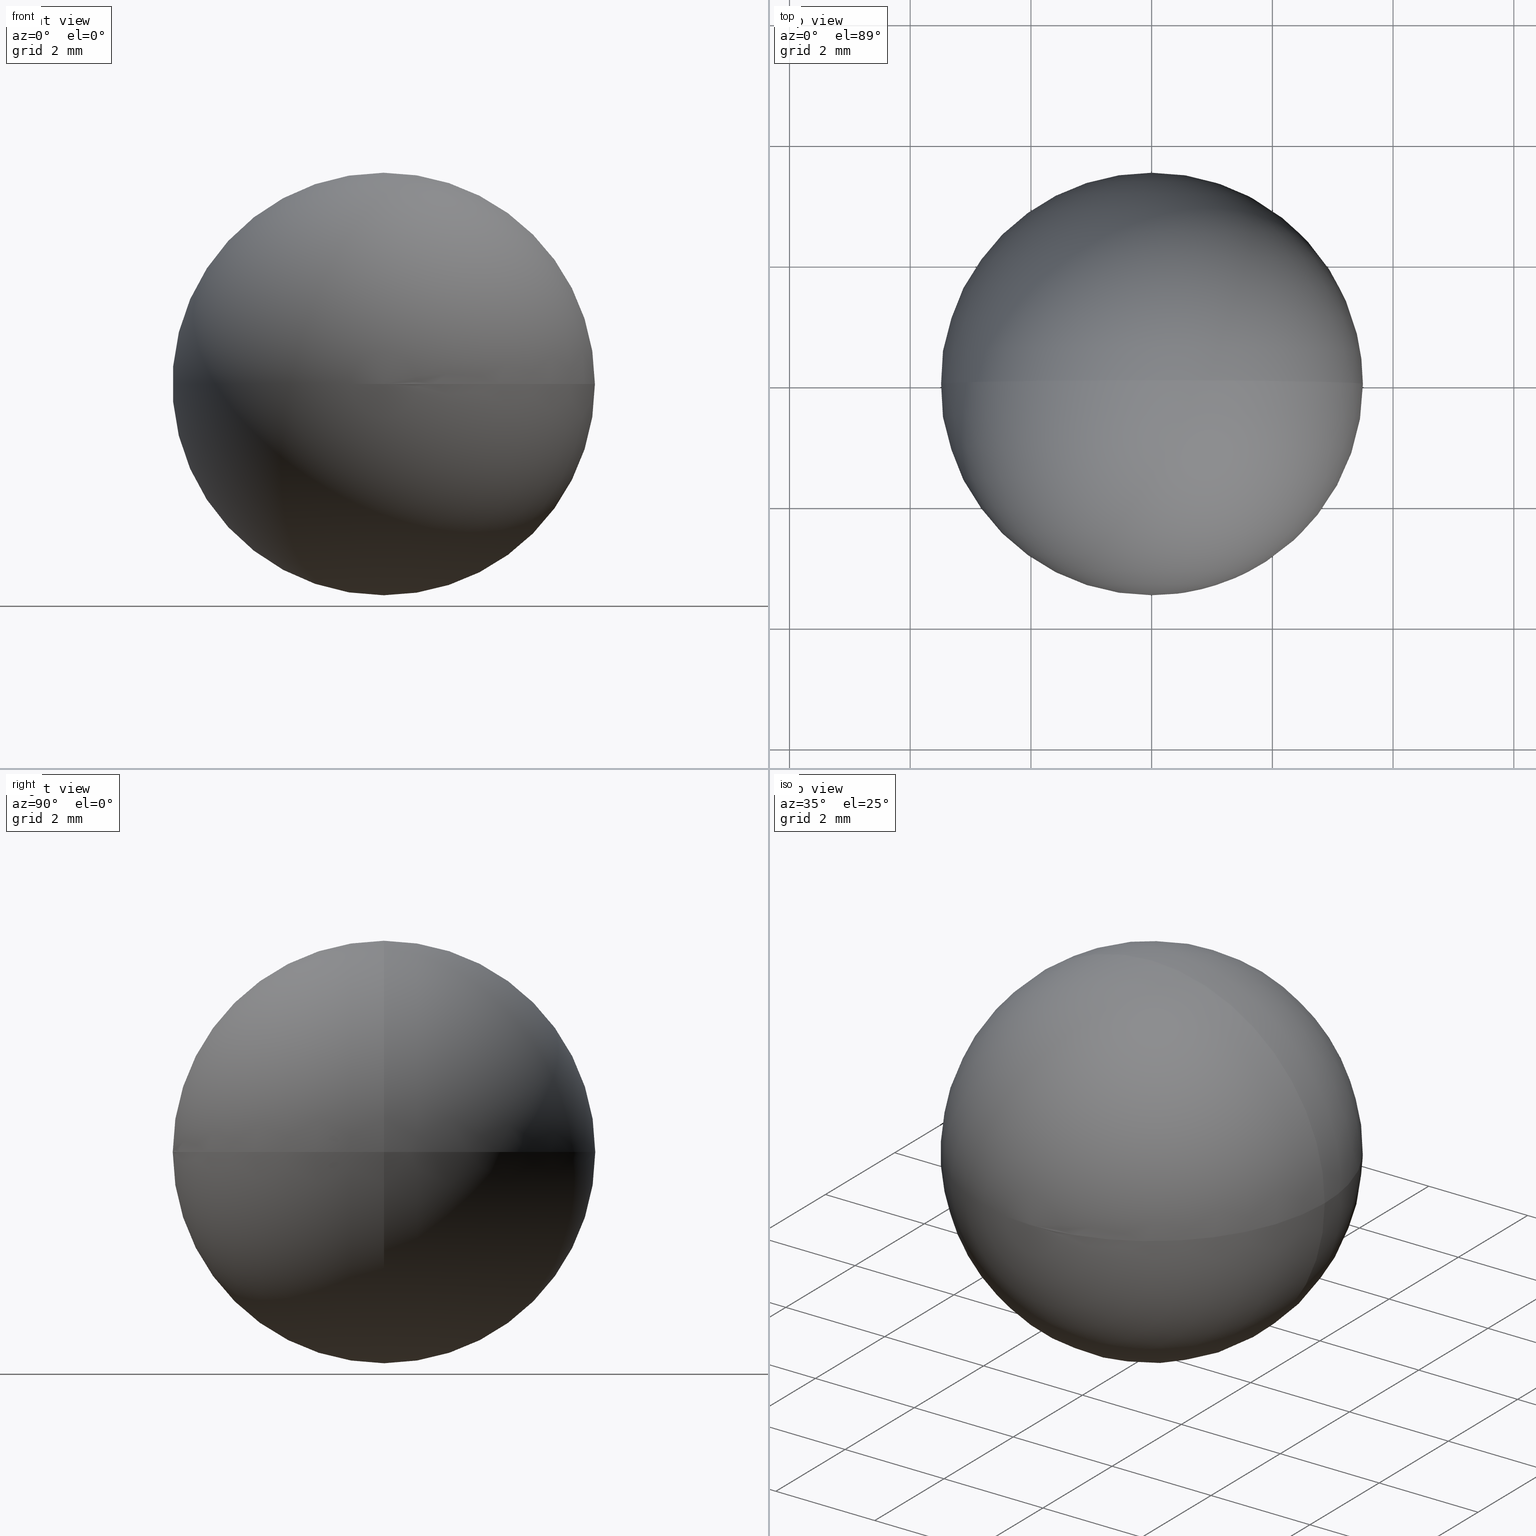
[diagram: canonical four-view strip — front | top / right | iso, engineering-drawing reading convention]
A machine part, canonical four-view strip (front | top / right | iso — engineering-drawing reading convention). The complete STEP part file that produces these views, byte-faithful:
ISO-10303-21;
HEADER;
FILE_DESCRIPTION (( 'STEP AP203' ),
    '1' );
FILE_NAME ('160006.STEP',
    '2019-06-05T05:49:33',
    ( '' ),
    ( '' ),
    'SwSTEP 2.0',
    'SolidWorks 2016',
    '' );
FILE_SCHEMA (( 'CONFIG_CONTROL_DESIGN' ));
ENDSEC;

DATA;
#1 = LOCAL_TIME ( 13, 49, 33.00000000000000000, #104 ) ;
#2 = DATE_AND_TIME ( #55, #154 ) ;
#3 = ADVANCED_BREP_SHAPE_REPRESENTATION ( '160006', ( #114, #111 ), #73 ) ;
#4 = CC_DESIGN_APPROVAL ( #196, ( #176 ) ) ;
#5 = APPROVAL_PERSON_ORGANIZATION ( #169, #62, #152 ) ;
#6 = COORDINATED_UNIVERSAL_TIME_OFFSET ( 8, 0, .AHEAD. ) ;
#7 = CC_DESIGN_PERSON_AND_ORGANIZATION_ASSIGNMENT ( #134, #76, ( #197 ) ) ;
#8 = APPROVAL_DATE_TIME ( #175, #135 ) ;
#9 = APPROVAL_PERSON_ORGANIZATION ( #87, #105, #168 ) ;
#10 = APPLICATION_CONTEXT ( 'configuration controlled 3d designs of mechanical parts and assemblies' ) ;
#11 = APPROVAL_DATE_TIME ( #37, #35 ) ;
#12 = PERSON_AND_ORGANIZATION ( #32, #156 ) ;
#13 = DESIGN_CONTEXT ( 'detailed design', #65, 'design' ) ;
#14 = LOCAL_TIME ( 13, 49, 33.00000000000000000, #54 ) ;
#15 = CC_DESIGN_PERSON_AND_ORGANIZATION_ASSIGNMENT ( #98, #137, ( #176 ) ) ;
#16 = PERSON_AND_ORGANIZATION_ROLE ( 'classification_officer' ) ;
#17 = DIRECTION ( 'NONE',  ( 1.224646799147353200E-016, -1.000000000000000000, 0.0000000000000000000 ) ) ;
#18 = APPLICATION_PROTOCOL_DEFINITION ( 'international standard', 'config_control_design', 1994, #60 ) ;
#19 = CC_DESIGN_PERSON_AND_ORGANIZATION_ASSIGNMENT ( #201, #74, ( #29 ) ) ;
#20 = CC_DESIGN_DATE_AND_TIME_ASSIGNMENT ( #59, #30, ( #185 ) ) ;
#21 = CALENDAR_DATE ( 2019, 5, 6 ) ;
#22 = PERSON_AND_ORGANIZATION ( #32, #156 ) ;
#23 = DIRECTION ( 'NONE',  ( 1.000000000000000000, 0.0000000000000000000, 0.0000000000000000000 ) ) ;
#24 = DIRECTION ( 'NONE',  ( 0.0000000000000000000, 0.0000000000000000000, 1.000000000000000000 ) ) ;
#25 = CC_DESIGN_DATE_AND_TIME_ASSIGNMENT ( #86, #92, ( #176 ) ) ;
#26 = FACE_OUTER_BOUND ( 'NONE', #49, .T. ) ;
#27 = CC_DESIGN_DATE_AND_TIME_ASSIGNMENT ( #83, #61, ( #29 ) ) ;
#28 = CC_DESIGN_APPROVAL ( #105, ( #158 ) ) ;
#29 = SECURITY_CLASSIFICATION ( '', '', #198 ) ;
#30 = DATE_TIME_ROLE ( 'classification_date' ) ;
#31 = APPROVAL ( #142, 'δָ��' ) ;
#32 = PERSON ( 'δָ��', 'δָ��', 'δָ��', ('δָ��'), ('δָ��'), ('δָ��') ) ;
#33 = DIRECTION ( 'NONE',  ( 0.0000000000000000000, 0.0000000000000000000, 1.000000000000000000 ) ) ;
#34 = PERSON_AND_ORGANIZATION_ROLE ( 'design_owner' ) ;
#35 = APPROVAL ( #161, 'δָ��' ) ;
#36 = DATE_AND_TIME ( #122, #78 ) ;
#37 = DATE_AND_TIME ( #101, #165 ) ;
#38 = ORIENTED_EDGE ( 'NONE', *, *, #64, .F. ) ;
#39 = PERSON_AND_ORGANIZATION ( #32, #156 ) ;
#40 =( NAMED_UNIT ( * ) PLANE_ANGLE_UNIT ( ) SI_UNIT ( $, .RADIAN. ) );
#41 = APPROVAL_DATE_TIME ( #36, #105 ) ;
#42 = DIRECTION ( 'NONE',  ( 1.000000000000000000, 0.0000000000000000000, 0.0000000000000000000 ) ) ;
#43 = CALENDAR_DATE ( 2019, 5, 6 ) ;
#44 = LOCAL_TIME ( 13, 49, 33.00000000000000000, #51 ) ;
#45 = CALENDAR_DATE ( 2019, 5, 6 ) ;
#46 = CC_DESIGN_APPROVAL ( #35, ( #197 ) ) ;
#47 = CALENDAR_DATE ( 2019, 5, 6 ) ;
#48 = APPROVAL_STATUS ( 'not_yet_approved' ) ;
#49 = EDGE_LOOP ( 'NONE', ( #84, #202 ) ) ;
#50 = DIRECTION ( 'NONE',  ( 1.000000000000000000, 1.224646799147353200E-016, 0.0000000000000000000 ) ) ;
#51 = COORDINATED_UNIVERSAL_TIME_OFFSET ( 8, 0, .AHEAD. ) ;
#52 = PRODUCT ( '160006', '160006', '', ( #191 ) ) ;
#53 = AXIS2_PLACEMENT_3D ( 'NONE', #82, #131, #33 ) ;
#54 = COORDINATED_UNIVERSAL_TIME_OFFSET ( 8, 0, .AHEAD. ) ;
#55 = CALENDAR_DATE ( 2019, 5, 6 ) ;
#56 = LOCAL_TIME ( 13, 49, 33.00000000000000000, #164 ) ;
#57 = CALENDAR_DATE ( 2019, 5, 6 ) ;
#58 = CC_DESIGN_PERSON_AND_ORGANIZATION_ASSIGNMENT ( #70, #200, ( #179 ) ) ;
#59 = DATE_AND_TIME ( #21, #186 ) ;
#60 = APPLICATION_CONTEXT ( 'configuration controlled 3d designs of mechanical parts and assemblies' ) ;
#61 = DATE_TIME_ROLE ( 'classification_date' ) ;
#62 = APPROVAL ( #69, 'δָ��' ) ;
#63 = COORDINATED_UNIVERSAL_TIME_OFFSET ( 8, 0, .AHEAD. ) ;
#64 = EDGE_CURVE ( 'NONE', #129, #120, #108, .T. ) ;
#65 = APPLICATION_CONTEXT ( 'configuration controlled 3d designs of mechanical parts and assemblies' ) ;
#66 = APPROVAL_ROLE ( '' ) ;
#67 = CARTESIAN_POINT ( 'NONE',  ( 2.143131898507868300E-016, 0.0000000000000000000, -3.500000000000000000 ) ) ;
#68 = PRODUCT_RELATED_PRODUCT_CATEGORY ( 'detail', '', ( #52 ) ) ;
#69 = APPROVAL_STATUS ( 'not_yet_approved' ) ;
#70 = PERSON_AND_ORGANIZATION ( #32, #156 ) ;
#71 = CC_DESIGN_PERSON_AND_ORGANIZATION_ASSIGNMENT ( #96, #181, ( #197 ) ) ;
#72 = APPROVAL_ROLE ( '' ) ;
#73 =( GEOMETRIC_REPRESENTATION_CONTEXT ( 3 ) GLOBAL_UNCERTAINTY_ASSIGNED_CONTEXT ( ( #77 ) ) GLOBAL_UNIT_ASSIGNED_CONTEXT ( ( #183, #40, #94 ) ) REPRESENTATION_CONTEXT ( 'NONE', 'WORKASPACE' ) );
#74 = PERSON_AND_ORGANIZATION_ROLE ( 'classification_officer' ) ;
#75 = CC_DESIGN_SECURITY_CLASSIFICATION ( #29, ( #197 ) ) ;
#76 = PERSON_AND_ORGANIZATION_ROLE ( 'design_supplier' ) ;
#77 = UNCERTAINTY_MEASURE_WITH_UNIT (LENGTH_MEASURE( 1.000000000000000100E-005 ), #183, 'distance_accuracy_value', 'NONE');
#78 = LOCAL_TIME ( 13, 49, 33.00000000000000000, #126 ) ;
#79 = APPLICATION_PROTOCOL_DEFINITION ( 'international standard', 'config_control_design', 1994, #65 ) ;
#80 = AXIS2_PLACEMENT_3D ( 'NONE', #139, #147, #195 ) ;
#81 = MECHANICAL_CONTEXT ( 'NONE', #10, 'mechanical' ) ;
#82 = CARTESIAN_POINT ( 'NONE',  ( 0.0000000000000000000, 0.0000000000000000000, 0.0000000000000000000 ) ) ;
#83 = DATE_AND_TIME ( #47, #56 ) ;
#84 = ORIENTED_EDGE ( 'NONE', *, *, #119, .F. ) ;
#85 = CARTESIAN_POINT ( 'NONE',  ( 2.143131898507868300E-016, 0.0000000000000000000, 3.500000000000000000 ) ) ;
#86 = DATE_AND_TIME ( #160, #44 ) ;
#87 = PERSON_AND_ORGANIZATION ( #32, #156 ) ;
#88 = LOCAL_TIME ( 13, 49, 33.00000000000000000, #128 ) ;
#89 = EDGE_LOOP ( 'NONE', ( #38, #97 ) ) ;
#90 = CC_DESIGN_APPROVAL ( #135, ( #179 ) ) ;
#91 = APPROVAL_DATE_TIME ( #130, #196 ) ;
#92 = DATE_TIME_ROLE ( 'creation_date' ) ;
#93 = LOCAL_TIME ( 13, 49, 33.00000000000000000, #133 ) ;
#94 =( NAMED_UNIT ( * ) SI_UNIT ( $, .STERADIAN. ) SOLID_ANGLE_UNIT ( ) );
#95 = CC_DESIGN_APPROVAL ( #62, ( #29 ) ) ;
#96 = PERSON_AND_ORGANIZATION ( #32, #156 ) ;
#97 = ORIENTED_EDGE ( 'NONE', *, *, #119, .T. ) ;
#98 = PERSON_AND_ORGANIZATION ( #32, #156 ) ;
#99 = APPROVAL_DATE_TIME ( #141, #31 ) ;
#100 = PERSON_AND_ORGANIZATION ( #32, #156 ) ;
#101 = CALENDAR_DATE ( 2019, 5, 6 ) ;
#102 = APPROVAL_STATUS ( 'not_yet_approved' ) ;
#103 = APPROVAL_ROLE ( '' ) ;
#104 = COORDINATED_UNIVERSAL_TIME_OFFSET ( 8, 0, .AHEAD. ) ;
#105 = APPROVAL ( #102, 'δָ��' ) ;
#106 = APPLICATION_CONTEXT ( 'configuration controlled 3d designs of mechanical parts and assemblies' ) ;
#107 = PERSON_AND_ORGANIZATION ( #32, #156 ) ;
#108 = CIRCLE ( 'NONE', #53, 3.500000000000000000 ) ;
#109 = PRODUCT_DEFINITION_SHAPE ( 'NONE', 'NONE',  #176 ) ;
#110 = PERSON_AND_ORGANIZATION ( #32, #156 ) ;
#111 = AXIS2_PLACEMENT_3D ( 'NONE', #121, #24, #42 ) ;
#112 = SPHERICAL_SURFACE ( 'NONE', #162, 3.500000000000000000 ) ;
#113 = CC_DESIGN_PERSON_AND_ORGANIZATION_ASSIGNMENT ( #22, #151, ( #179 ) ) ;
#114 = MANIFOLD_SOLID_BREP ( '��ת2', #153 ) ;
#115 = SECURITY_CLASSIFICATION_LEVEL ( 'unclassified' ) ;
#116 = DIRECTION ( 'NONE',  ( 1.000000000000000000, 0.0000000000000000000, 0.0000000000000000000 ) ) ;
#117 = DIRECTION ( 'NONE',  ( 0.0000000000000000000, -1.000000000000000000, -0.0000000000000000000 ) ) ;
#118 = APPLICATION_PROTOCOL_DEFINITION ( 'international standard', 'config_control_design', 1994, #106 ) ;
#119 = EDGE_CURVE ( 'NONE', #129, #120, #193, .T. ) ;
#120 = VERTEX_POINT ( 'NONE', #67 ) ;
#121 = CARTESIAN_POINT ( 'NONE',  ( 0.0000000000000000000, 0.0000000000000000000, 0.0000000000000000000 ) ) ;
#122 = CALENDAR_DATE ( 2019, 5, 6 ) ;
#123 = APPROVAL_DATE_TIME ( #155, #62 ) ;
#124 = CC_DESIGN_PERSON_AND_ORGANIZATION_ASSIGNMENT ( #148, #150, ( #173 ) ) ;
#125 = APPROVAL_PERSON_ORGANIZATION ( #172, #196, #178 ) ;
#126 = COORDINATED_UNIVERSAL_TIME_OFFSET ( 8, 0, .AHEAD. ) ;
#127 = DATE_TIME_ROLE ( 'creation_date' ) ;
#128 = COORDINATED_UNIVERSAL_TIME_OFFSET ( 8, 0, .AHEAD. ) ;
#129 = VERTEX_POINT ( 'NONE', #85 ) ;
#130 = DATE_AND_TIME ( #57, #1 ) ;
#131 = DIRECTION ( 'NONE',  ( 0.0000000000000000000, 1.000000000000000000, -0.0000000000000000000 ) ) ;
#132 = APPROVAL_STATUS ( 'not_yet_approved' ) ;
#133 = COORDINATED_UNIVERSAL_TIME_OFFSET ( 8, 0, .AHEAD. ) ;
#134 = PERSON_AND_ORGANIZATION ( #32, #156 ) ;
#135 = APPROVAL ( #48, 'δָ��' ) ;
#136 = APPROVAL_PERSON_ORGANIZATION ( #12, #35, #72 ) ;
#137 = PERSON_AND_ORGANIZATION_ROLE ( 'creator' ) ;
#138 = CALENDAR_DATE ( 2019, 5, 6 ) ;
#139 = CARTESIAN_POINT ( 'NONE',  ( 0.0000000000000000000, 0.0000000000000000000, 0.0000000000000000000 ) ) ;
#140 = PRODUCT_DEFINITION_SHAPE ( 'NONE', 'NONE',  #158 ) ;
#141 = DATE_AND_TIME ( #138, #14 ) ;
#142 = APPROVAL_STATUS ( 'not_yet_approved' ) ;
#143 = CC_DESIGN_PERSON_AND_ORGANIZATION_ASSIGNMENT ( #110, #16, ( #185 ) ) ;
#144 = SHAPE_DEFINITION_REPRESENTATION ( #140, #3 ) ;
#145 = FACE_OUTER_BOUND ( 'NONE', #89, .T. ) ;
#146 = CC_DESIGN_DATE_AND_TIME_ASSIGNMENT ( #2, #127, ( #158 ) ) ;
#147 = DIRECTION ( 'NONE',  ( 0.0000000000000000000, 0.0000000000000000000, 1.000000000000000000 ) ) ;
#148 = PERSON_AND_ORGANIZATION ( #32, #156 ) ;
#149 = PRODUCT_RELATED_PRODUCT_CATEGORY ( 'detail', '', ( #173 ) ) ;
#150 = PERSON_AND_ORGANIZATION_ROLE ( 'design_owner' ) ;
#151 = PERSON_AND_ORGANIZATION_ROLE ( 'design_supplier' ) ;
#152 = APPROVAL_ROLE ( '' ) ;
#153 = CLOSED_SHELL ( 'NONE', ( #177, #157 ) ) ;
#154 = LOCAL_TIME ( 13, 49, 33.00000000000000000, #199 ) ;
#155 = DATE_AND_TIME ( #43, #88 ) ;
#156 = ORGANIZATION ( 'δָ��', 'δָ��', '' ) ;
#157 = ADVANCED_FACE ( 'NONE', ( #26 ), #184, .T. ) ;
#158 = PRODUCT_DEFINITION ( 'δ֪', '', #179, #13 ) ;
#159 = DESIGN_CONTEXT ( 'detailed design', #106, 'design' ) ;
#160 = CALENDAR_DATE ( 2019, 5, 6 ) ;
#161 = APPROVAL_STATUS ( 'not_yet_approved' ) ;
#162 = AXIS2_PLACEMENT_3D ( 'NONE', #174, #171, #23 ) ;
#163 = APPROVAL_PERSON_ORGANIZATION ( #167, #135, #103 ) ;
#164 = COORDINATED_UNIVERSAL_TIME_OFFSET ( 8, 0, .AHEAD. ) ;
#165 = LOCAL_TIME ( 13, 49, 33.00000000000000000, #6 ) ;
#166 = CC_DESIGN_APPROVAL ( #31, ( #185 ) ) ;
#167 = PERSON_AND_ORGANIZATION ( #32, #156 ) ;
#168 = APPROVAL_ROLE ( '' ) ;
#169 = PERSON_AND_ORGANIZATION ( #32, #156 ) ;
#170 = PERSON_AND_ORGANIZATION_ROLE ( 'creator' ) ;
#171 = DIRECTION ( 'NONE',  ( 0.0000000000000000000, -1.000000000000000000, -0.0000000000000000000 ) ) ;
#172 = PERSON_AND_ORGANIZATION ( #32, #156 ) ;
#173 = PRODUCT ( '160006', '160006', '', ( #81 ) ) ;
#174 = CARTESIAN_POINT ( 'NONE',  ( 0.0000000000000000000, 0.0000000000000000000, 0.0000000000000000000 ) ) ;
#175 = DATE_AND_TIME ( #45, #93 ) ;
#176 = PRODUCT_DEFINITION ( 'δ֪', '', #197, #159 ) ;
#177 = ADVANCED_FACE ( 'NONE', ( #145 ), #112, .T. ) ;
#178 = APPROVAL_ROLE ( '' ) ;
#179 = PRODUCT_DEFINITION_FORMATION_WITH_SPECIFIED_SOURCE ( '�κ�', '', #173, .NOT_KNOWN. ) ;
#180 = AXIS2_PLACEMENT_3D ( 'NONE', #190, #117, #116 ) ;
#181 = PERSON_AND_ORGANIZATION_ROLE ( 'creator' ) ;
#182 = APPROVAL_PERSON_ORGANIZATION ( #107, #31, #66 ) ;
#183 =( LENGTH_UNIT ( ) NAMED_UNIT ( * ) SI_UNIT ( .MILLI., .METRE. ) );
#184 = SPHERICAL_SURFACE ( 'NONE', #180, 3.500000000000000000 ) ;
#185 = SECURITY_CLASSIFICATION ( '', '', #115 ) ;
#186 = LOCAL_TIME ( 13, 49, 33.00000000000000000, #63 ) ;
#187 = AXIS2_PLACEMENT_3D ( 'NONE', #189, #17, #50 ) ;
#188 = APPLICATION_PROTOCOL_DEFINITION ( 'international standard', 'config_control_design', 1994, #10 ) ;
#189 = CARTESIAN_POINT ( 'NONE',  ( 0.0000000000000000000, 0.0000000000000000000, 0.0000000000000000000 ) ) ;
#190 = CARTESIAN_POINT ( 'NONE',  ( 0.0000000000000000000, 0.0000000000000000000, 0.0000000000000000000 ) ) ;
#191 = MECHANICAL_CONTEXT ( 'NONE', #60, 'mechanical' ) ;
#192 = CC_DESIGN_PERSON_AND_ORGANIZATION_ASSIGNMENT ( #39, #34, ( #52 ) ) ;
#193 = CIRCLE ( 'NONE', #187, 3.500000000000000000 ) ;
#194 = CC_DESIGN_PERSON_AND_ORGANIZATION_ASSIGNMENT ( #100, #170, ( #158 ) ) ;
#195 = DIRECTION ( 'NONE',  ( 1.000000000000000000, 0.0000000000000000000, 0.0000000000000000000 ) ) ;
#196 = APPROVAL ( #132, 'δָ��' ) ;
#197 = PRODUCT_DEFINITION_FORMATION_WITH_SPECIFIED_SOURCE ( '�κ�', '', #52, .NOT_KNOWN. ) ;
#198 = SECURITY_CLASSIFICATION_LEVEL ( 'unclassified' ) ;
#199 = COORDINATED_UNIVERSAL_TIME_OFFSET ( 8, 0, .AHEAD. ) ;
#200 = PERSON_AND_ORGANIZATION_ROLE ( 'creator' ) ;
#201 = PERSON_AND_ORGANIZATION ( #32, #156 ) ;
#202 = ORIENTED_EDGE ( 'NONE', *, *, #64, .T. ) ;
#203 = CC_DESIGN_SECURITY_CLASSIFICATION ( #185, ( #179 ) ) ;
ENDSEC;
END-ISO-10303-21;
